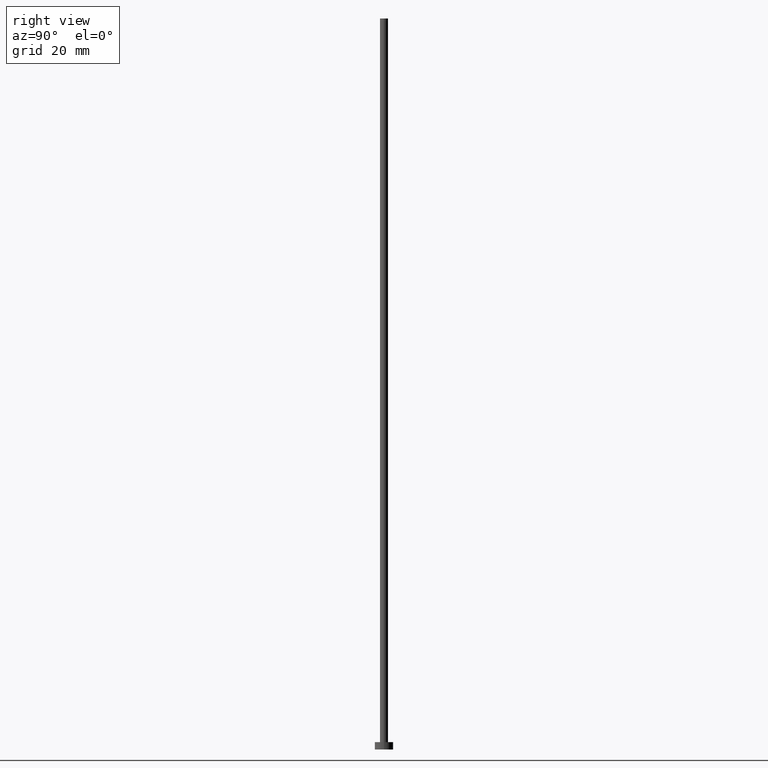
[diagram: clean part render]
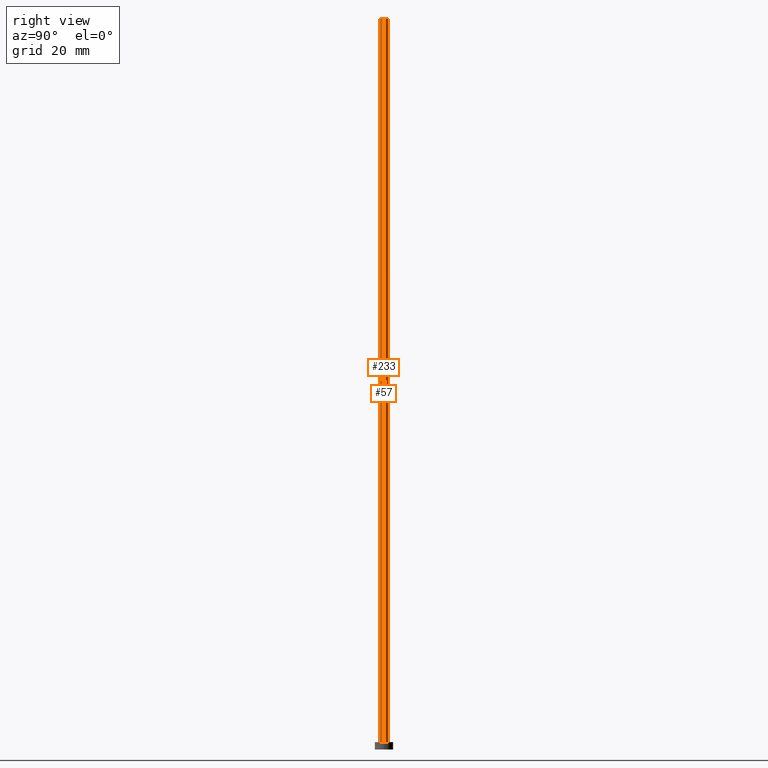
[diagram: same view with one multi-face feature highlighted, each face labeled with its STEP entity id]
A machine part, right view. The highlighted faces form ONE feature: a constant-radius fillet chain: 2 tangent blend faces with common blend radius 1.1 mm. The faces share edges in the B-rep.
Their STEP definitions:
[1] entity #57 (Cylinder):
#1 = CARTESIAN_POINT ( 'NONE',  ( 0.000000000000000000, 0.000000000000000000, 200.0000000000000000 ) ) ;
#4 = ORIENTED_EDGE ( 'NONE', *, *, #111, .F. ) ;
#14 = AXIS2_PLACEMENT_3D ( 'NONE', #1, #95, #231 ) ;
#16 = DIRECTION ( 'NONE',  ( -0.000000000000000000, -0.000000000000000000, -1.000000000000000000 ) ) ;
#17 = CARTESIAN_POINT ( 'NONE',  ( -1.100000000000000089, 0.000000000000000000, 200.0000000000000000 ) ) ;
#27 = DIRECTION ( 'NONE',  ( 0.000000000000000000, 0.000000000000000000, 1.000000000000000000 ) ) ;
#37 = CARTESIAN_POINT ( 'NONE',  ( 1.100000000000000089, 1.347111479062088503E-16, 200.0000000000000000 ) ) ;
#57 = ADVANCED_FACE ( 'NONE', ( #128 ), #198, .T. ) ;
#59 = ORIENTED_EDGE ( 'NONE', *, *, #242, .T. ) ;
#79 = CARTESIAN_POINT ( 'NONE',  ( -1.100000000000000089, 0.000000000000000000, 200.0000000000000000 ) ) ;
#90 = EDGE_CURVE ( 'NONE', #102, #120, #236, .T. ) ;
#95 = DIRECTION ( 'NONE',  ( -0.000000000000000000, -0.000000000000000000, -1.000000000000000000 ) ) ;
#101 = CIRCLE ( 'NONE', #135, 1.100000000000000089 ) ;
#102 = VERTEX_POINT ( 'NONE', #79 ) ;
#109 = VERTEX_POINT ( 'NONE', #155 ) ;
#111 = EDGE_CURVE ( 'NONE', #129, #102, #101, .T. ) ;
#118 = VECTOR ( 'NONE', #166, 1000.000000000000000 ) ;
#120 = VERTEX_POINT ( 'NONE', #181 ) ;
#128 = FACE_OUTER_BOUND ( 'NONE', #208, .T. ) ;
#129 = VERTEX_POINT ( 'NONE', #203 ) ;
#135 = AXIS2_PLACEMENT_3D ( 'NONE', #238, #148, #143 ) ;
#137 = ORIENTED_EDGE ( 'NONE', *, *, #161, .T. ) ;
#143 = DIRECTION ( 'NONE',  ( 1.000000000000000000, 0.000000000000000000, 0.000000000000000000 ) ) ;
#148 = DIRECTION ( 'NONE',  ( 0.000000000000000000, 0.000000000000000000, 1.000000000000000000 ) ) ;
#155 = CARTESIAN_POINT ( 'NONE',  ( 1.100000000000000089, 1.347111479062088503E-16, 2.000000000000000000 ) ) ;
#157 = CIRCLE ( 'NONE', #182, 1.100000000000000089 ) ;
#161 = EDGE_CURVE ( 'NONE', #129, #109, #241, .T. ) ;
#166 = DIRECTION ( 'NONE',  ( -0.000000000000000000, -0.000000000000000000, -1.000000000000000000 ) ) ;
#181 = CARTESIAN_POINT ( 'NONE',  ( -1.100000000000000089, 0.000000000000000000, 2.000000000000000000 ) ) ;
#182 = AXIS2_PLACEMENT_3D ( 'NONE', #246, #27, #209 ) ;
#198 = CYLINDRICAL_SURFACE ( 'NONE', #14, 1.100000000000000089 ) ;
#202 = VECTOR ( 'NONE', #16, 1000.000000000000000 ) ;
#203 = CARTESIAN_POINT ( 'NONE',  ( 1.100000000000000089, 1.347111479062088503E-16, 200.0000000000000000 ) ) ;
#208 = EDGE_LOOP ( 'NONE', ( #4, #137, #59, #244 ) ) ;
#209 = DIRECTION ( 'NONE',  ( 1.000000000000000000, 0.000000000000000000, 0.000000000000000000 ) ) ;
#231 = DIRECTION ( 'NONE',  ( -1.000000000000000000, 0.000000000000000000, 0.000000000000000000 ) ) ;
#236 = LINE ( 'NONE', #17, #202 ) ;
#238 = CARTESIAN_POINT ( 'NONE',  ( 0.000000000000000000, 0.000000000000000000, 200.0000000000000000 ) ) ;
#241 = LINE ( 'NONE', #37, #118 ) ;
#242 = EDGE_CURVE ( 'NONE', #109, #120, #157, .T. ) ;
#244 = ORIENTED_EDGE ( 'NONE', *, *, #90, .F. ) ;
#246 = CARTESIAN_POINT ( 'NONE',  ( 0.000000000000000000, 0.000000000000000000, 2.000000000000000000 ) ) ;
[2] entity #233 (Cylinder):
#16 = DIRECTION ( 'NONE',  ( -0.000000000000000000, -0.000000000000000000, -1.000000000000000000 ) ) ;
#17 = CARTESIAN_POINT ( 'NONE',  ( -1.100000000000000089, 0.000000000000000000, 200.0000000000000000 ) ) ;
#18 = AXIS2_PLACEMENT_3D ( 'NONE', #94, #223, #184 ) ;
#19 = EDGE_CURVE ( 'NONE', #120, #109, #247, .T. ) ;
#24 = CYLINDRICAL_SURFACE ( 'NONE', #115, 1.100000000000000089 ) ;
#37 = CARTESIAN_POINT ( 'NONE',  ( 1.100000000000000089, 1.347111479062088503E-16, 200.0000000000000000 ) ) ;
#43 = ORIENTED_EDGE ( 'NONE', *, *, #90, .T. ) ;
#50 = DIRECTION ( 'NONE',  ( -0.000000000000000000, -0.000000000000000000, -1.000000000000000000 ) ) ;
#62 = CARTESIAN_POINT ( 'NONE',  ( 0.000000000000000000, 0.000000000000000000, 200.0000000000000000 ) ) ;
#70 = DIRECTION ( 'NONE',  ( 0.000000000000000000, 0.000000000000000000, 1.000000000000000000 ) ) ;
#79 = CARTESIAN_POINT ( 'NONE',  ( -1.100000000000000089, 0.000000000000000000, 200.0000000000000000 ) ) ;
#90 = EDGE_CURVE ( 'NONE', #102, #120, #236, .T. ) ;
#91 = CARTESIAN_POINT ( 'NONE',  ( 0.000000000000000000, 0.000000000000000000, 2.000000000000000000 ) ) ;
#92 = DIRECTION ( 'NONE',  ( 1.000000000000000000, 0.000000000000000000, 0.000000000000000000 ) ) ;
#94 = CARTESIAN_POINT ( 'NONE',  ( 0.000000000000000000, 0.000000000000000000, 200.0000000000000000 ) ) ;
#97 = AXIS2_PLACEMENT_3D ( 'NONE', #91, #70, #92 ) ;
#102 = VERTEX_POINT ( 'NONE', #79 ) ;
#109 = VERTEX_POINT ( 'NONE', #155 ) ;
#115 = AXIS2_PLACEMENT_3D ( 'NONE', #62, #50, #167 ) ;
#118 = VECTOR ( 'NONE', #166, 1000.000000000000000 ) ;
#120 = VERTEX_POINT ( 'NONE', #181 ) ;
#129 = VERTEX_POINT ( 'NONE', #203 ) ;
#147 = FACE_OUTER_BOUND ( 'NONE', #159, .T. ) ;
#155 = CARTESIAN_POINT ( 'NONE',  ( 1.100000000000000089, 1.347111479062088503E-16, 2.000000000000000000 ) ) ;
#159 = EDGE_LOOP ( 'NONE', ( #178, #224, #43, #239 ) ) ;
#161 = EDGE_CURVE ( 'NONE', #129, #109, #241, .T. ) ;
#166 = DIRECTION ( 'NONE',  ( -0.000000000000000000, -0.000000000000000000, -1.000000000000000000 ) ) ;
#167 = DIRECTION ( 'NONE',  ( -1.000000000000000000, 0.000000000000000000, 0.000000000000000000 ) ) ;
#178 = ORIENTED_EDGE ( 'NONE', *, *, #161, .F. ) ;
#181 = CARTESIAN_POINT ( 'NONE',  ( -1.100000000000000089, 0.000000000000000000, 2.000000000000000000 ) ) ;
#184 = DIRECTION ( 'NONE',  ( 1.000000000000000000, 0.000000000000000000, 0.000000000000000000 ) ) ;
#191 = EDGE_CURVE ( 'NONE', #102, #129, #211, .T. ) ;
#202 = VECTOR ( 'NONE', #16, 1000.000000000000000 ) ;
#203 = CARTESIAN_POINT ( 'NONE',  ( 1.100000000000000089, 1.347111479062088503E-16, 200.0000000000000000 ) ) ;
#211 = CIRCLE ( 'NONE', #18, 1.100000000000000089 ) ;
#223 = DIRECTION ( 'NONE',  ( 0.000000000000000000, 0.000000000000000000, 1.000000000000000000 ) ) ;
#224 = ORIENTED_EDGE ( 'NONE', *, *, #191, .F. ) ;
#233 = ADVANCED_FACE ( 'NONE', ( #147 ), #24, .T. ) ;
#236 = LINE ( 'NONE', #17, #202 ) ;
#239 = ORIENTED_EDGE ( 'NONE', *, *, #19, .T. ) ;
#241 = LINE ( 'NONE', #37, #118 ) ;
#247 = CIRCLE ( 'NONE', #97, 1.100000000000000089 ) ;